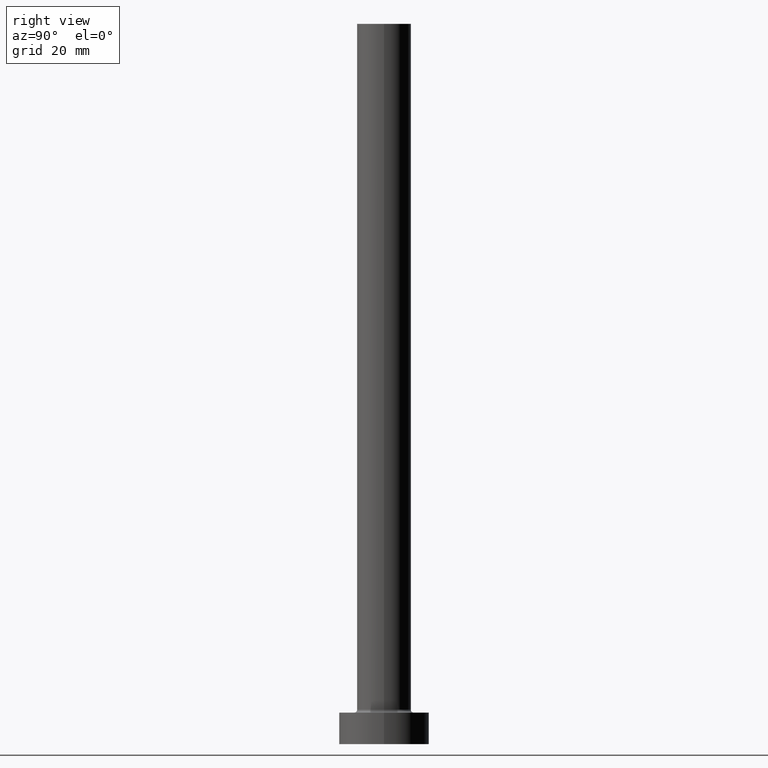
[diagram: clean part render]
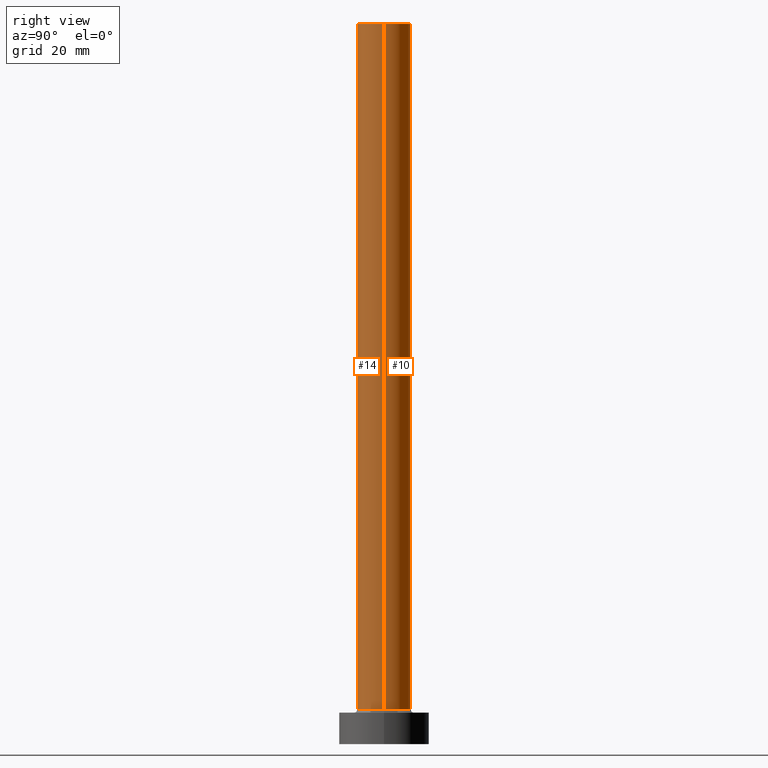
[diagram: same view with one multi-face feature highlighted, each face labeled with its STEP entity id]
A machine part, right view. The highlighted faces form ONE feature: a constant-radius fillet chain: 2 tangent blend faces with common blend radius 6 mm. The faces share edges in the B-rep.
Their STEP definitions:
[1] entity #14 (Cylinder):
#8 = ORIENTED_EDGE ( 'NONE', *, *, #305, .F. ) ;
#11 = CYLINDRICAL_SURFACE ( 'NONE', #160, 6.000000000000000888 ) ;
#14 = ADVANCED_FACE ( 'NONE', ( #341 ), #11, .T. ) ;
#24 = DIRECTION ( 'NONE',  ( 0.000000000000000000, 0.000000000000000000, 1.000000000000000000 ) ) ;
#25 = ORIENTED_EDGE ( 'NONE', *, *, #333, .T. ) ;
#38 = CIRCLE ( 'NONE', #121, 6.000000000000000888 ) ;
#41 = EDGE_CURVE ( 'NONE', #332, #313, #269, .T. ) ;
#43 = ORIENTED_EDGE ( 'NONE', *, *, #101, .T. ) ;
#62 = AXIS2_PLACEMENT_3D ( 'NONE', #123, #272, #409 ) ;
#66 = VERTEX_POINT ( 'NONE', #162 ) ;
#69 = CARTESIAN_POINT ( 'NONE',  ( -6.000000000000000888, 0.000000000000000000, 160.0000000000000000 ) ) ;
#73 = CARTESIAN_POINT ( 'NONE',  ( -6.000000000000000888, 0.000000000000000000, 160.0000000000000000 ) ) ;
#80 = CARTESIAN_POINT ( 'NONE',  ( 0.000000000000000000, 0.000000000000000000, 160.0000000000000000 ) ) ;
#101 = EDGE_CURVE ( 'NONE', #66, #382, #38, .T. ) ;
#108 = DIRECTION ( 'NONE',  ( -0.000000000000000000, -0.000000000000000000, -1.000000000000000000 ) ) ;
#121 = AXIS2_PLACEMENT_3D ( 'NONE', #419, #24, #414 ) ;
#123 = CARTESIAN_POINT ( 'NONE',  ( 0.000000000000000000, 0.000000000000000000, 160.0000000000000000 ) ) ;
#141 = VECTOR ( 'NONE', #108, 1000.000000000000000 ) ;
#157 = DIRECTION ( 'NONE',  ( -1.000000000000000000, 0.000000000000000000, 0.000000000000000000 ) ) ;
#160 = AXIS2_PLACEMENT_3D ( 'NONE', #80, #375, #157 ) ;
#162 = CARTESIAN_POINT ( 'NONE',  ( -6.000000000000000888, 0.000000000000000000, 7.700000000000012612 ) ) ;
#188 = CARTESIAN_POINT ( 'NONE',  ( 6.000000000000000888, 7.347880794884120722E-16, 7.700000000000012612 ) ) ;
#212 = DIRECTION ( 'NONE',  ( -0.000000000000000000, -0.000000000000000000, -1.000000000000000000 ) ) ;
#258 = VECTOR ( 'NONE', #212, 1000.000000000000000 ) ;
#269 = CIRCLE ( 'NONE', #62, 6.000000000000000888 ) ;
#272 = DIRECTION ( 'NONE',  ( 0.000000000000000000, 0.000000000000000000, 1.000000000000000000 ) ) ;
#290 = CARTESIAN_POINT ( 'NONE',  ( 6.000000000000000888, 7.347880794884120722E-16, 160.0000000000000000 ) ) ;
#305 = EDGE_CURVE ( 'NONE', #313, #382, #460, .T. ) ;
#313 = VERTEX_POINT ( 'NONE', #290 ) ;
#316 = EDGE_LOOP ( 'NONE', ( #8, #319, #25, #43 ) ) ;
#319 = ORIENTED_EDGE ( 'NONE', *, *, #41, .F. ) ;
#327 = LINE ( 'NONE', #69, #141 ) ;
#332 = VERTEX_POINT ( 'NONE', #73 ) ;
#333 = EDGE_CURVE ( 'NONE', #332, #66, #327, .T. ) ;
#341 = FACE_OUTER_BOUND ( 'NONE', #316, .T. ) ;
#375 = DIRECTION ( 'NONE',  ( -0.000000000000000000, -0.000000000000000000, -1.000000000000000000 ) ) ;
#382 = VERTEX_POINT ( 'NONE', #188 ) ;
#395 = CARTESIAN_POINT ( 'NONE',  ( 6.000000000000000888, 7.347880794884120722E-16, 160.0000000000000000 ) ) ;
#409 = DIRECTION ( 'NONE',  ( 1.000000000000000000, 0.000000000000000000, 0.000000000000000000 ) ) ;
#414 = DIRECTION ( 'NONE',  ( 1.000000000000000000, 0.000000000000000000, 0.000000000000000000 ) ) ;
#419 = CARTESIAN_POINT ( 'NONE',  ( 0.000000000000000000, 0.000000000000000000, 7.700000000000012612 ) ) ;
#460 = LINE ( 'NONE', #395, #258 ) ;
[2] entity #10 (Cylinder):
#5 = ORIENTED_EDGE ( 'NONE', *, *, #381, .T. ) ;
#10 = ADVANCED_FACE ( 'NONE', ( #119 ), #366, .T. ) ;
#23 = ORIENTED_EDGE ( 'NONE', *, *, #298, .F. ) ;
#66 = VERTEX_POINT ( 'NONE', #162 ) ;
#69 = CARTESIAN_POINT ( 'NONE',  ( -6.000000000000000888, 0.000000000000000000, 160.0000000000000000 ) ) ;
#73 = CARTESIAN_POINT ( 'NONE',  ( -6.000000000000000888, 0.000000000000000000, 160.0000000000000000 ) ) ;
#108 = DIRECTION ( 'NONE',  ( -0.000000000000000000, -0.000000000000000000, -1.000000000000000000 ) ) ;
#119 = FACE_OUTER_BOUND ( 'NONE', #209, .T. ) ;
#141 = VECTOR ( 'NONE', #108, 1000.000000000000000 ) ;
#153 = CIRCLE ( 'NONE', #406, 6.000000000000000888 ) ;
#162 = CARTESIAN_POINT ( 'NONE',  ( -6.000000000000000888, 0.000000000000000000, 7.700000000000012612 ) ) ;
#174 = CARTESIAN_POINT ( 'NONE',  ( 0.000000000000000000, 0.000000000000000000, 160.0000000000000000 ) ) ;
#179 = DIRECTION ( 'NONE',  ( 1.000000000000000000, 0.000000000000000000, 0.000000000000000000 ) ) ;
#188 = CARTESIAN_POINT ( 'NONE',  ( 6.000000000000000888, 7.347880794884120722E-16, 7.700000000000012612 ) ) ;
#192 = DIRECTION ( 'NONE',  ( -0.000000000000000000, -0.000000000000000000, -1.000000000000000000 ) ) ;
#209 = EDGE_LOOP ( 'NONE', ( #23, #441, #5, #238 ) ) ;
#212 = DIRECTION ( 'NONE',  ( -0.000000000000000000, -0.000000000000000000, -1.000000000000000000 ) ) ;
#216 = AXIS2_PLACEMENT_3D ( 'NONE', #230, #192, #261 ) ;
#219 = DIRECTION ( 'NONE',  ( 0.000000000000000000, 0.000000000000000000, 1.000000000000000000 ) ) ;
#230 = CARTESIAN_POINT ( 'NONE',  ( 0.000000000000000000, 0.000000000000000000, 160.0000000000000000 ) ) ;
#238 = ORIENTED_EDGE ( 'NONE', *, *, #333, .F. ) ;
#252 = CIRCLE ( 'NONE', #386, 6.000000000000000888 ) ;
#253 = CARTESIAN_POINT ( 'NONE',  ( 0.000000000000000000, 0.000000000000000000, 7.700000000000012612 ) ) ;
#258 = VECTOR ( 'NONE', #212, 1000.000000000000000 ) ;
#261 = DIRECTION ( 'NONE',  ( -1.000000000000000000, 0.000000000000000000, 0.000000000000000000 ) ) ;
#290 = CARTESIAN_POINT ( 'NONE',  ( 6.000000000000000888, 7.347880794884120722E-16, 160.0000000000000000 ) ) ;
#298 = EDGE_CURVE ( 'NONE', #313, #332, #252, .T. ) ;
#305 = EDGE_CURVE ( 'NONE', #313, #382, #460, .T. ) ;
#313 = VERTEX_POINT ( 'NONE', #290 ) ;
#327 = LINE ( 'NONE', #69, #141 ) ;
#332 = VERTEX_POINT ( 'NONE', #73 ) ;
#333 = EDGE_CURVE ( 'NONE', #332, #66, #327, .T. ) ;
#361 = DIRECTION ( 'NONE',  ( 1.000000000000000000, 0.000000000000000000, 0.000000000000000000 ) ) ;
#366 = CYLINDRICAL_SURFACE ( 'NONE', #216, 6.000000000000000888 ) ;
#381 = EDGE_CURVE ( 'NONE', #382, #66, #153, .T. ) ;
#382 = VERTEX_POINT ( 'NONE', #188 ) ;
#386 = AXIS2_PLACEMENT_3D ( 'NONE', #174, #398, #179 ) ;
#395 = CARTESIAN_POINT ( 'NONE',  ( 6.000000000000000888, 7.347880794884120722E-16, 160.0000000000000000 ) ) ;
#398 = DIRECTION ( 'NONE',  ( 0.000000000000000000, 0.000000000000000000, 1.000000000000000000 ) ) ;
#406 = AXIS2_PLACEMENT_3D ( 'NONE', #253, #219, #361 ) ;
#441 = ORIENTED_EDGE ( 'NONE', *, *, #305, .T. ) ;
#460 = LINE ( 'NONE', #395, #258 ) ;